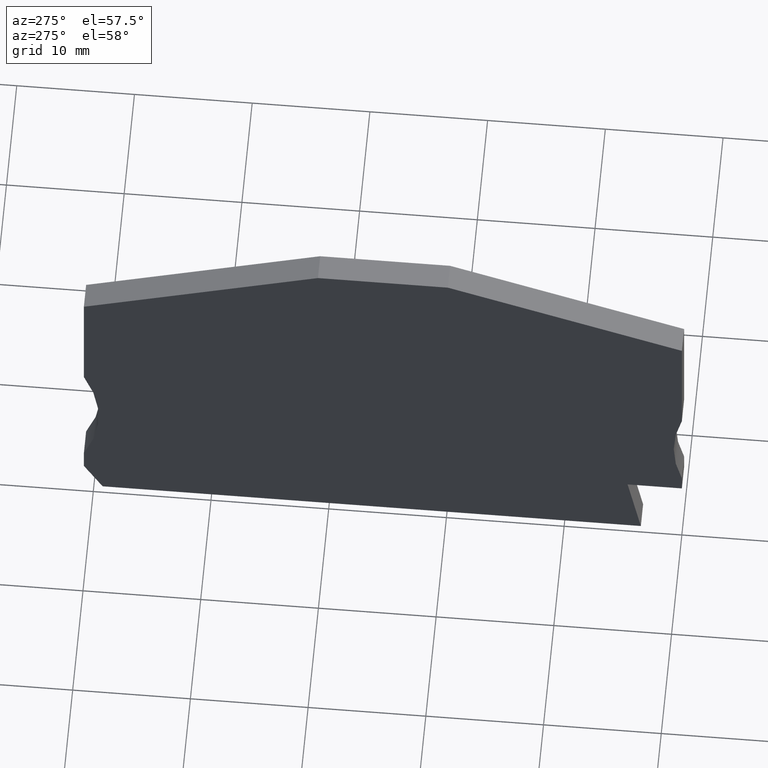
[diagram: clean part render]
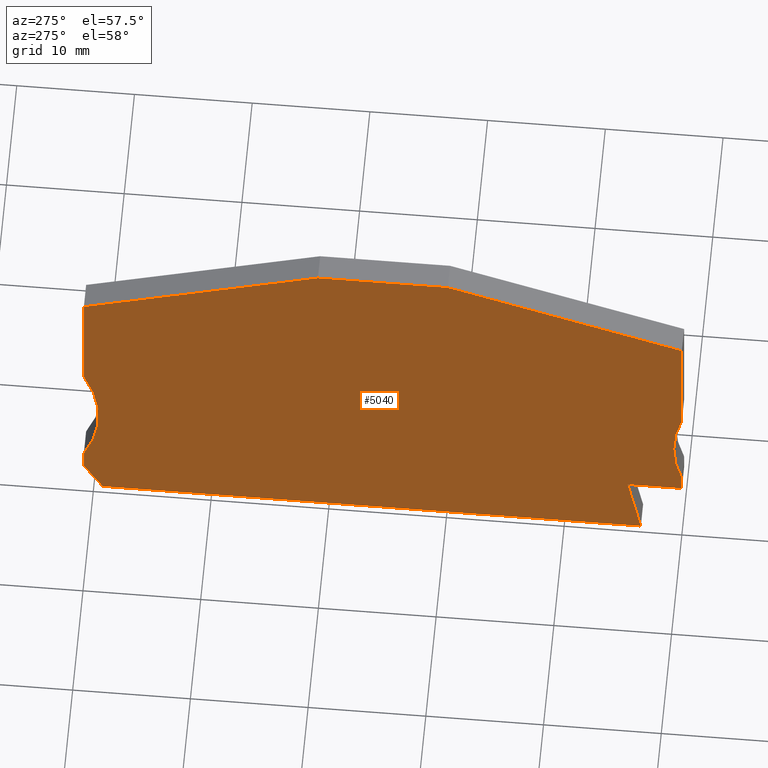
[diagram: same view with one face highlighted and labeled with its STEP entity id]
A machine part, auxiliary view. The second image highlights one B-rep face of the part: STEP entity #5040.
In plain terms, the highlighted planar face has unit normal (-1, 0, -0).
Its self-contained STEP definition (entity closure, byte-faithful):
#1310=CARTESIAN_POINT('',(-23.017026976606,35.517225,-2.2));
#1320=VERTEX_POINT('',#1310);
#1400=CARTESIAN_POINT('',(-42.9,28.2804146507667,-2.2));
#1410=VERTEX_POINT('',#1400);
#1440=CARTESIAN_POINT('',(0.,43.8947377007868,-2.2));
#1450=DIRECTION('',(-0.939692620785908,-0.342020143325669,0.));
#1460=VECTOR('',#1450,1.);
#1470=LINE('',#1440,#1460);
#1480=EDGE_CURVE('',#1320,#1410,#1470,.T.);
#1700=CARTESIAN_POINT('',(7.89999999999908,3.21722499999996,-2.2));
#1710=VERTEX_POINT('',#1700);
#1740=CARTESIAN_POINT('',(6.18678137793485,0.,-2.2));
#1750=DIRECTION('',(0.470025375689051,0.882652902452808,0.));
#1760=VECTOR('',#1750,1.);
#1770=LINE('',#1740,#1760);
#1780=CARTESIAN_POINT('',(6.30245681722737,0.217224999999992,-2.2));
#1790=VERTEX_POINT('',#1780);
#1800=EDGE_CURVE('',#1790,#1710,#1770,.T.);
#2040=CARTESIAN_POINT('',(0.,0.217224999999992,-2.2));
#2050=DIRECTION('',(1.,0.,0.));
#2060=VECTOR('',#2050,1.);
#2070=LINE('',#2040,#2060);
#2080=CARTESIAN_POINT('',(-39.4166561668892,0.217224999999992,-2.2));
#2090=VERTEX_POINT('',#2080);
#2100=EDGE_CURVE('',#2090,#1790,#2070,.T.);
#2390=CARTESIAN_POINT('',(-11.9829730233949,35.517225,-2.2));
#2400=VERTEX_POINT('',#2390);
#2430=CARTESIAN_POINT('',(0.,31.1557795014694,-2.2));
#2440=DIRECTION('',(-0.939692620785908,0.342020143325669,0.));
#2450=VECTOR('',#2440,1.);
#2460=LINE('',#2430,#2450);
#2470=CARTESIAN_POINT('',(7.89999999999908,28.2804146507667,-2.2));
#2480=VERTEX_POINT('',#2470);
#2490=EDGE_CURVE('',#2480,#2400,#2460,.T.);
#2760=CARTESIAN_POINT('',(-42.9,17.2172249999973,-2.2));
#2770=VERTEX_POINT('',#2760);
#2850=CARTESIAN_POINT('',(-42.9,8.21722499999913,-2.2));
#2860=VERTEX_POINT('',#2850);
#2890=CARTESIAN_POINT('',(-57.2090880212678,12.7172249999982,-2.2));
#2900=DIRECTION('',(0.,0.,1.));
#2910=DIRECTION('',(1.,0.,0.));
#2920=AXIS2_PLACEMENT_3D('',#2890,#2900,#2910);
#2930=CIRCLE('',#2920,15.0000000000127);
#2940=EDGE_CURVE('',#2860,#2770,#2930,.T.);
#3150=CARTESIAN_POINT('',(7.89999999999907,5.21722499999871,-2.2));
#3160=VERTEX_POINT('',#3150);
#3240=CARTESIAN_POINT('',(7.89999999999907,17.2172249999986,-2.2));
#3250=VERTEX_POINT('',#3240);
#3280=CARTESIAN_POINT('',(21.6477270848667,11.2172249999987,-2.2));
#3290=DIRECTION('',(0.,0.,1.));
#3300=DIRECTION('',(1.,0.,0.));
#3310=AXIS2_PLACEMENT_3D('',#3280,#3290,#3300);
#3320=CIRCLE('',#3310,15.0000000000001);
#3330=EDGE_CURVE('',#3250,#3160,#3320,.T.);
#3500=CARTESIAN_POINT('',(7.89999999999908,0.,-2.2));
#3510=DIRECTION('',(-1.77635683940139E-15,1.,0.));
#3520=VECTOR('',#3510,1.);
#3530=LINE('',#3500,#3520);
#3540=EDGE_CURVE('',#1710,#3160,#3530,.T.);
#3750=CARTESIAN_POINT('',(7.89999999999908,0.,-2.2));
#3760=DIRECTION('',(0.,1.,0.));
#3770=VECTOR('',#3760,1.);
#3780=LINE('',#3750,#3770);
#3790=EDGE_CURVE('',#3250,#2480,#3780,.T.);
#4000=CARTESIAN_POINT('',(0.,35.517225,-2.2));
#4010=DIRECTION('',(-1.,0.,0.));
#4020=VECTOR('',#4010,1.);
#4030=LINE('',#4000,#4020);
#4040=EDGE_CURVE('',#2400,#1320,#4030,.T.);
#4220=CARTESIAN_POINT('',(-42.9,0.,-2.2));
#4230=DIRECTION('',(0.,-1.,0.));
#4240=VECTOR('',#4230,1.);
#4250=LINE('',#4220,#4240);
#4260=CARTESIAN_POINT('',(-42.9,6.61722500000401,-2.2));
#4270=VERTEX_POINT('',#4260);
#4280=EDGE_CURVE('',#2860,#4270,#4250,.T.);
#4530=CARTESIAN_POINT('',(-42.9,0.,-2.2));
#4540=DIRECTION('',(0.,-1.,0.));
#4550=VECTOR('',#4540,1.);
#4560=LINE('',#4530,#4550);
#4570=EDGE_CURVE('',#1410,#2770,#4560,.T.);
#4720=CARTESIAN_POINT('',(-14.2774044461,25.5883479499399,-2.2));
#4730=DIRECTION('',(0.,0.,-1.));
#4740=DIRECTION('',(-1.,0.,0.));
#4750=AXIS2_PLACEMENT_3D('',#4720,#4730,#4740);
#4760=PLANE('',#4750);
#4770=ORIENTED_EDGE('',*,*,#3330,.T.);
#4780=ORIENTED_EDGE('',*,*,#3790,.F.);
#4790=ORIENTED_EDGE('',*,*,#2490,.F.);
#4800=ORIENTED_EDGE('',*,*,#4040,.F.);
#4810=ORIENTED_EDGE('',*,*,#1480,.F.);
#4820=ORIENTED_EDGE('',*,*,#4570,.F.);
#4830=ORIENTED_EDGE('',*,*,#2940,.T.);
#4840=ORIENTED_EDGE('',*,*,#4280,.F.);
#4850=CARTESIAN_POINT('',(0.,6.61722500000392,-2.2));
#4860=DIRECTION('',(-1.,1.96726162400409E-15,0.));
#4870=VECTOR('',#4860,1.);
#4880=LINE('',#4850,#4870);
#4890=CARTESIAN_POINT('',(-38.2881634903552,6.61722500000401,-2.2));
#4900=VERTEX_POINT('',#4890);
#4910=EDGE_CURVE('',#4900,#4270,#4880,.T.);
#4920=ORIENTED_EDGE('',*,*,#4910,.T.);
#4930=CARTESIAN_POINT('',(-39.4549587952736,0.,-2.2));
#4940=DIRECTION('',(-0.173648177666793,-0.984807753012232,0.));
#4950=VECTOR('',#4940,1.);
#4960=LINE('',#4930,#4950);
#4970=EDGE_CURVE('',#4900,#2090,#4960,.T.);
#4980=ORIENTED_EDGE('',*,*,#4970,.F.);
#4990=ORIENTED_EDGE('',*,*,#2100,.F.);
#5000=ORIENTED_EDGE('',*,*,#1800,.F.);
#5010=ORIENTED_EDGE('',*,*,#3540,.F.);
#5020=EDGE_LOOP('',(#5010,#5000,#4990,#4980,#4920,#4840,#4830,#4820,
#4810,#4800,#4790,#4780,#4770));
#5030=FACE_OUTER_BOUND('',#5020,.T.);
#5040=ADVANCED_FACE('',(#5030),#4760,.T.);